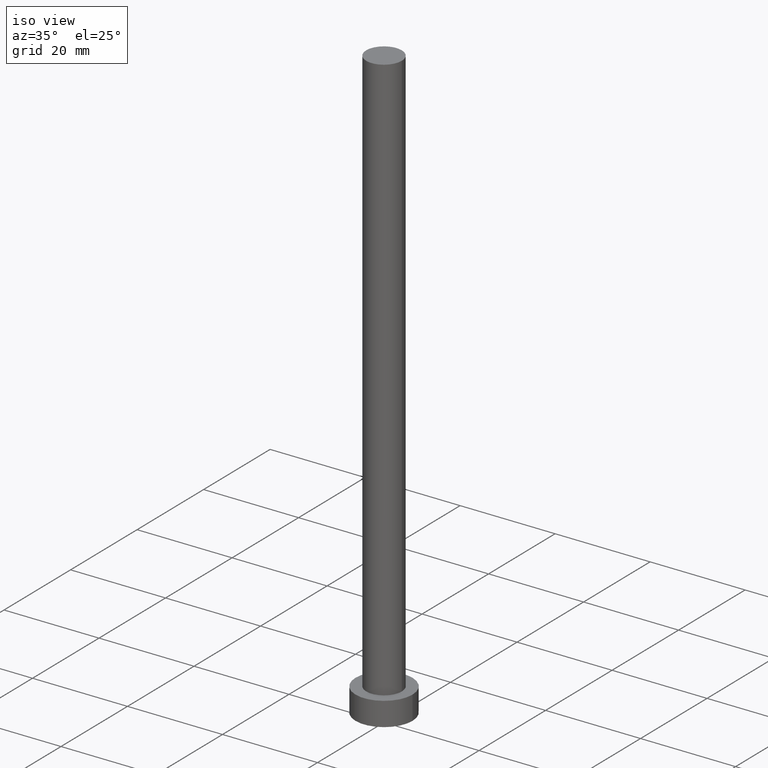
[diagram: clean part render]
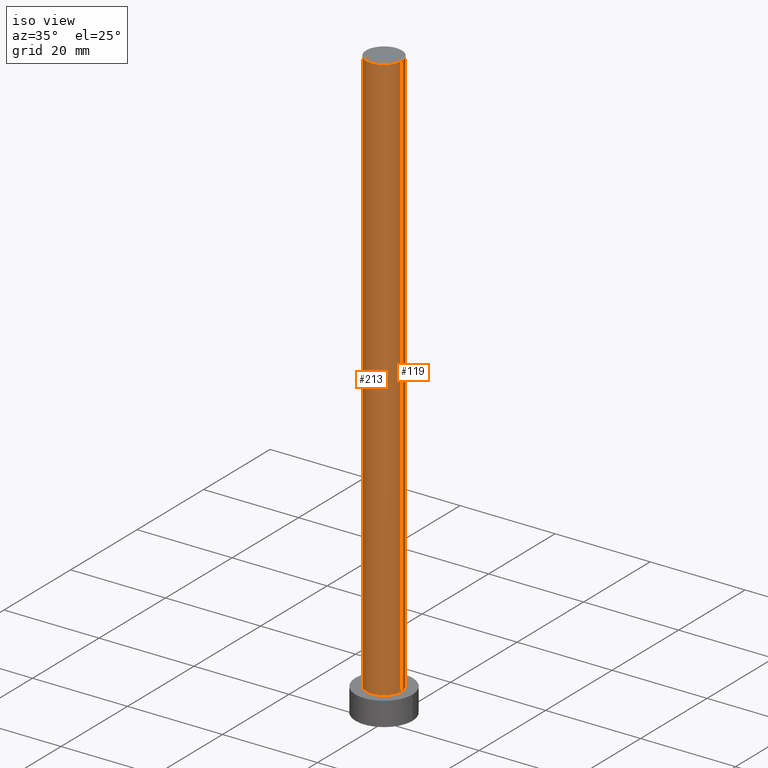
[diagram: same view with one multi-face feature highlighted, each face labeled with its STEP entity id]
A machine part, iso view. The highlighted faces form ONE feature: a constant-radius fillet chain: 2 tangent blend faces with common blend radius 3.75 mm. The faces share edges in the B-rep.
Their STEP definitions:
[1] entity #119 (Cylinder):
#2 = VERTEX_POINT ( 'NONE', #171 ) ;
#4 = EDGE_LOOP ( 'NONE', ( #102, #169, #203, #167 ) ) ;
#7 = CIRCLE ( 'NONE', #68, 3.750000000000000000 ) ;
#8 = CARTESIAN_POINT ( 'NONE',  ( 0.000000000000000000, 0.000000000000000000, 5.000000000000000000 ) ) ;
#11 = CARTESIAN_POINT ( 'NONE',  ( 0.000000000000000000, 0.000000000000000000, 125.0000000000000000 ) ) ;
#19 = DIRECTION ( 'NONE',  ( -0.000000000000000000, -0.000000000000000000, -1.000000000000000000 ) ) ;
#24 = VERTEX_POINT ( 'NONE', #49 ) ;
#25 = EDGE_CURVE ( 'NONE', #85, #45, #180, .T. ) ;
#32 = CARTESIAN_POINT ( 'NONE',  ( 3.750000000000000000, 4.592425496802573972E-16, 125.0000000000000000 ) ) ;
#41 = EDGE_CURVE ( 'NONE', #24, #45, #7, .T. ) ;
#45 = VERTEX_POINT ( 'NONE', #247 ) ;
#46 = DIRECTION ( 'NONE',  ( -0.000000000000000000, -0.000000000000000000, -1.000000000000000000 ) ) ;
#49 = CARTESIAN_POINT ( 'NONE',  ( 3.750000000000000000, 4.592425496802573972E-16, 5.000000000000000000 ) ) ;
#51 = CARTESIAN_POINT ( 'NONE',  ( -3.750000000000000000, 0.000000000000000000, 125.0000000000000000 ) ) ;
#61 = EDGE_CURVE ( 'NONE', #2, #24, #146, .T. ) ;
#68 = AXIS2_PLACEMENT_3D ( 'NONE', #8, #155, #134 ) ;
#82 = CIRCLE ( 'NONE', #248, 3.750000000000000000 ) ;
#85 = VERTEX_POINT ( 'NONE', #51 ) ;
#88 = CYLINDRICAL_SURFACE ( 'NONE', #235, 3.750000000000000000 ) ;
#90 = DIRECTION ( 'NONE',  ( 0.000000000000000000, 0.000000000000000000, 1.000000000000000000 ) ) ;
#102 = ORIENTED_EDGE ( 'NONE', *, *, #123, .F. ) ;
#107 = DIRECTION ( 'NONE',  ( -1.000000000000000000, 0.000000000000000000, 0.000000000000000000 ) ) ;
#112 = CARTESIAN_POINT ( 'NONE',  ( -3.750000000000000000, 0.000000000000000000, 125.0000000000000000 ) ) ;
#119 = ADVANCED_FACE ( 'NONE', ( #210 ), #88, .T. ) ;
#123 = EDGE_CURVE ( 'NONE', #2, #85, #82, .T. ) ;
#134 = DIRECTION ( 'NONE',  ( 1.000000000000000000, 0.000000000000000000, 0.000000000000000000 ) ) ;
#146 = LINE ( 'NONE', #32, #148 ) ;
#148 = VECTOR ( 'NONE', #221, 1000.000000000000000 ) ;
#155 = DIRECTION ( 'NONE',  ( 0.000000000000000000, 0.000000000000000000, 1.000000000000000000 ) ) ;
#165 = VECTOR ( 'NONE', #46, 1000.000000000000000 ) ;
#167 = ORIENTED_EDGE ( 'NONE', *, *, #25, .F. ) ;
#169 = ORIENTED_EDGE ( 'NONE', *, *, #61, .T. ) ;
#171 = CARTESIAN_POINT ( 'NONE',  ( 3.750000000000000000, 4.592425496802573972E-16, 125.0000000000000000 ) ) ;
#177 = CARTESIAN_POINT ( 'NONE',  ( 0.000000000000000000, 0.000000000000000000, 125.0000000000000000 ) ) ;
#180 = LINE ( 'NONE', #112, #165 ) ;
#193 = DIRECTION ( 'NONE',  ( 1.000000000000000000, 0.000000000000000000, 0.000000000000000000 ) ) ;
#203 = ORIENTED_EDGE ( 'NONE', *, *, #41, .T. ) ;
#210 = FACE_OUTER_BOUND ( 'NONE', #4, .T. ) ;
#221 = DIRECTION ( 'NONE',  ( -0.000000000000000000, -0.000000000000000000, -1.000000000000000000 ) ) ;
#235 = AXIS2_PLACEMENT_3D ( 'NONE', #177, #19, #107 ) ;
#247 = CARTESIAN_POINT ( 'NONE',  ( -3.750000000000000000, 0.000000000000000000, 5.000000000000000000 ) ) ;
#248 = AXIS2_PLACEMENT_3D ( 'NONE', #11, #90, #193 ) ;
[2] entity #213 (Cylinder):
#1 = EDGE_CURVE ( 'NONE', #45, #24, #181, .T. ) ;
#2 = VERTEX_POINT ( 'NONE', #171 ) ;
#24 = VERTEX_POINT ( 'NONE', #49 ) ;
#25 = EDGE_CURVE ( 'NONE', #85, #45, #180, .T. ) ;
#31 = DIRECTION ( 'NONE',  ( 0.000000000000000000, 0.000000000000000000, 1.000000000000000000 ) ) ;
#32 = CARTESIAN_POINT ( 'NONE',  ( 3.750000000000000000, 4.592425496802573972E-16, 125.0000000000000000 ) ) ;
#45 = VERTEX_POINT ( 'NONE', #247 ) ;
#46 = DIRECTION ( 'NONE',  ( -0.000000000000000000, -0.000000000000000000, -1.000000000000000000 ) ) ;
#49 = CARTESIAN_POINT ( 'NONE',  ( 3.750000000000000000, 4.592425496802573972E-16, 5.000000000000000000 ) ) ;
#51 = CARTESIAN_POINT ( 'NONE',  ( -3.750000000000000000, 0.000000000000000000, 125.0000000000000000 ) ) ;
#56 = DIRECTION ( 'NONE',  ( -0.000000000000000000, -0.000000000000000000, -1.000000000000000000 ) ) ;
#61 = EDGE_CURVE ( 'NONE', #2, #24, #146, .T. ) ;
#85 = VERTEX_POINT ( 'NONE', #51 ) ;
#87 = EDGE_CURVE ( 'NONE', #85, #2, #139, .T. ) ;
#101 = ORIENTED_EDGE ( 'NONE', *, *, #61, .F. ) ;
#104 = ORIENTED_EDGE ( 'NONE', *, *, #87, .F. ) ;
#110 = DIRECTION ( 'NONE',  ( 0.000000000000000000, 0.000000000000000000, 1.000000000000000000 ) ) ;
#112 = CARTESIAN_POINT ( 'NONE',  ( -3.750000000000000000, 0.000000000000000000, 125.0000000000000000 ) ) ;
#113 = DIRECTION ( 'NONE',  ( -1.000000000000000000, 0.000000000000000000, 0.000000000000000000 ) ) ;
#117 = FACE_OUTER_BOUND ( 'NONE', #237, .T. ) ;
#136 = DIRECTION ( 'NONE',  ( 1.000000000000000000, 0.000000000000000000, 0.000000000000000000 ) ) ;
#139 = CIRCLE ( 'NONE', #158, 3.750000000000000000 ) ;
#146 = LINE ( 'NONE', #32, #148 ) ;
#148 = VECTOR ( 'NONE', #221, 1000.000000000000000 ) ;
#158 = AXIS2_PLACEMENT_3D ( 'NONE', #207, #31, #136 ) ;
#165 = VECTOR ( 'NONE', #46, 1000.000000000000000 ) ;
#168 = AXIS2_PLACEMENT_3D ( 'NONE', #199, #56, #113 ) ;
#171 = CARTESIAN_POINT ( 'NONE',  ( 3.750000000000000000, 4.592425496802573972E-16, 125.0000000000000000 ) ) ;
#180 = LINE ( 'NONE', #112, #165 ) ;
#181 = CIRCLE ( 'NONE', #249, 3.750000000000000000 ) ;
#183 = CYLINDRICAL_SURFACE ( 'NONE', #168, 3.750000000000000000 ) ;
#187 = DIRECTION ( 'NONE',  ( 1.000000000000000000, 0.000000000000000000, 0.000000000000000000 ) ) ;
#199 = CARTESIAN_POINT ( 'NONE',  ( 0.000000000000000000, 0.000000000000000000, 125.0000000000000000 ) ) ;
#207 = CARTESIAN_POINT ( 'NONE',  ( 0.000000000000000000, 0.000000000000000000, 125.0000000000000000 ) ) ;
#213 = ADVANCED_FACE ( 'NONE', ( #117 ), #183, .T. ) ;
#221 = DIRECTION ( 'NONE',  ( -0.000000000000000000, -0.000000000000000000, -1.000000000000000000 ) ) ;
#224 = CARTESIAN_POINT ( 'NONE',  ( 0.000000000000000000, 0.000000000000000000, 5.000000000000000000 ) ) ;
#226 = ORIENTED_EDGE ( 'NONE', *, *, #1, .T. ) ;
#237 = EDGE_LOOP ( 'NONE', ( #101, #104, #239, #226 ) ) ;
#239 = ORIENTED_EDGE ( 'NONE', *, *, #25, .T. ) ;
#247 = CARTESIAN_POINT ( 'NONE',  ( -3.750000000000000000, 0.000000000000000000, 5.000000000000000000 ) ) ;
#249 = AXIS2_PLACEMENT_3D ( 'NONE', #224, #110, #187 ) ;